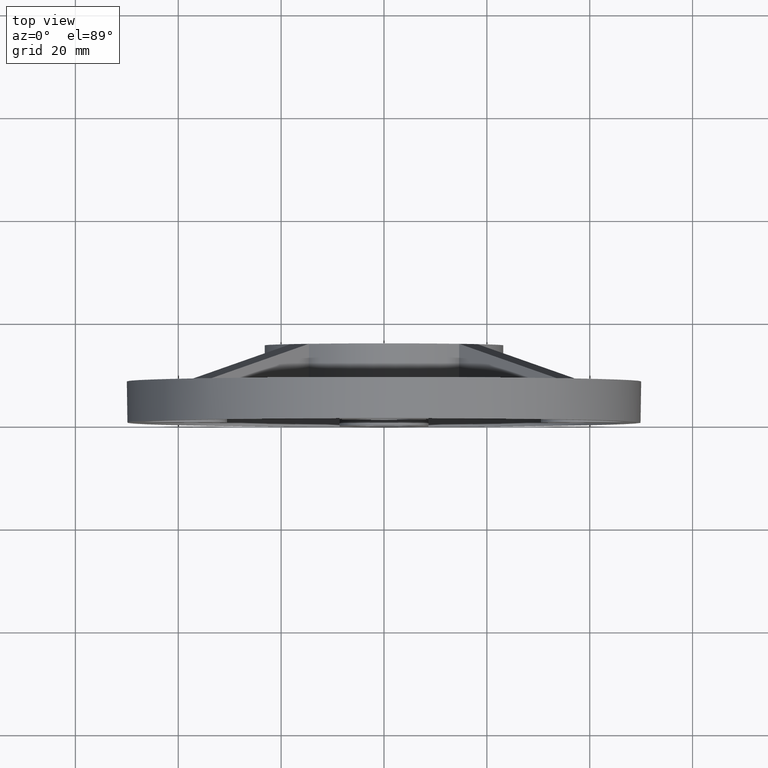
[diagram: clean part render]
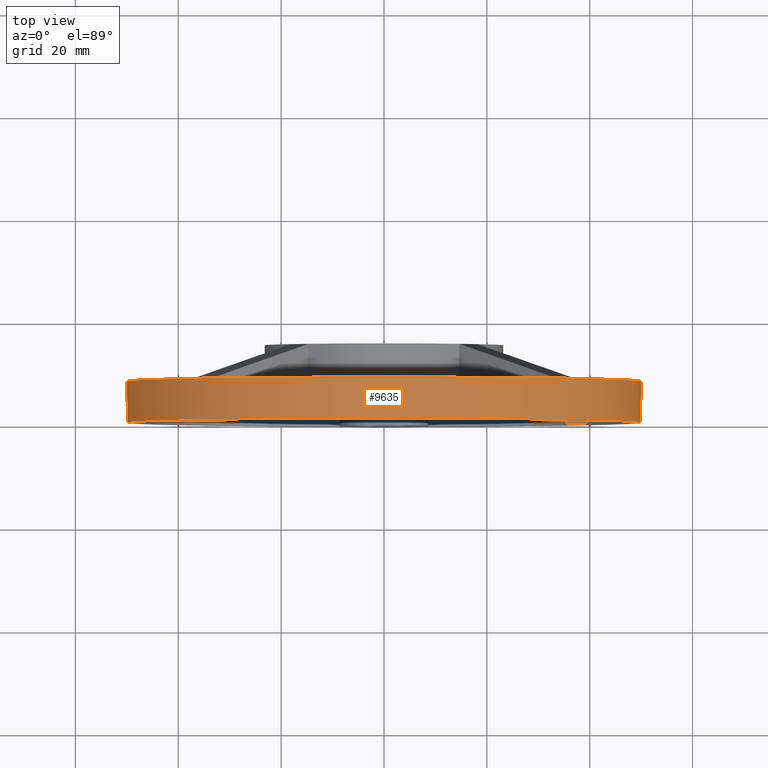
[diagram: same view with one face highlighted and labeled with its STEP entity id]
A machine part, top view. The second image highlights one B-rep face of the part: STEP entity #9635.
In plain terms, the highlighted cylindrical surface (bore or boss wall) has radius 50 mm, axis along (-0, -1, -0).
Its self-contained STEP definition (entity closure, byte-faithful):
#3 = CARTESIAN_POINT ( 'NONE',  ( 37.07888418253015317, 8.000000000000000000, -33.54335027659752910 ) ) ;
#18 = CIRCLE ( 'NONE', #2540, 50.00000000000000000 ) ;
#199 = ORIENTED_EDGE ( 'NONE', *, *, #3386, .F. ) ;
#330 = VERTEX_POINT ( 'NONE', #10463 ) ;
#354 = CARTESIAN_POINT ( 'NONE',  ( -37.07888418252991158, 8.000000000000000000, 33.54335027659778490 ) ) ;
#535 = DIRECTION ( 'NONE',  ( 0.000000000000000000, 0.000000000000000000, 1.000000000000000000 ) ) ;
#536 = DIRECTION ( 'NONE',  ( 0.000000000000000000, 1.000000000000000000, 0.000000000000000000 ) ) ;
#577 = FACE_OUTER_BOUND ( 'NONE', #3275, .T. ) ;
#587 = VERTEX_POINT ( 'NONE', #5414 ) ;
#609 = CARTESIAN_POINT ( 'NONE',  ( 0.000000000000000000, 8.000000000000000000, 0.000000000000000000 ) ) ;
#713 = ORIENTED_EDGE ( 'NONE', *, *, #9941, .T. ) ;
#773 = VERTEX_POINT ( 'NONE', #7668 ) ;
#871 = CARTESIAN_POINT ( 'NONE',  ( -34.78034455632263189, 8.035550269566304138, -35.95983938574750027 ) ) ;
#936 = ORIENTED_EDGE ( 'NONE', *, *, #4731, .F. ) ;
#957 = CARTESIAN_POINT ( 'NONE',  ( 0.000000000000000000, 8.000000000000000000, 0.000000000000000000 ) ) ;
#960 = AXIS2_PLACEMENT_3D ( 'NONE', #957, #9122, #7465 ) ;
#1145 = CARTESIAN_POINT ( 'NONE',  ( 0.000000000000000000, 8.000000000000000000, 0.000000000000000000 ) ) ;
#1147 = CARTESIAN_POINT ( 'NONE',  ( 33.54335027659739410, 8.000000000000000000, 37.07888418253026686 ) ) ;
#1234 = AXIS2_PLACEMENT_3D ( 'NONE', #609, #1498, #6359 ) ;
#1243 = AXIS2_PLACEMENT_3D ( 'NONE', #10326, #9617, #5574 ) ;
#1371 = VERTEX_POINT ( 'NONE', #9775 ) ;
#1441 =( BOUNDED_CURVE ( )  B_SPLINE_CURVE ( 3, ( #9201, #9065, #871, #6618 ),
 .UNSPECIFIED., .F., .T. ) 
 B_SPLINE_CURVE_WITH_KNOTS ( ( 4, 4 ),
 ( 3.091571796784022386, 3.191613510395562958 ),
 .UNSPECIFIED. ) 
 CURVE ( )  GEOMETRIC_REPRESENTATION_ITEM ( )  RATIONAL_B_SPLINE_CURVE ( ( 1.000000000000000000, 0.9991661451812726691, 0.9991661451812726691, 1.000000000000000000 ) ) 
 REPRESENTATION_ITEM ( '' )  );
#1498 = DIRECTION ( 'NONE',  ( 0.000000000000000000, 1.000000000000000000, 0.000000000000000000 ) ) ;
#1501 = CARTESIAN_POINT ( 'NONE',  ( 0.000000000000000000, 8.000000000000000000, 0.000000000000000000 ) ) ;
#1573 = VERTEX_POINT ( 'NONE', #2029 ) ;
#1833 = CARTESIAN_POINT ( 'NONE',  ( 37.07888418253015317, 8.000000000000000000, 33.54335027659752200 ) ) ;
#2029 = CARTESIAN_POINT ( 'NONE',  ( 33.54335027659739410, 8.000000000000000000, 37.07888418253026686 ) ) ;
#2373 =( BOUNDED_CURVE ( )  B_SPLINE_CURVE ( 3, ( #7879, #2953, #8614, #354 ),
 .UNSPECIFIED., .F., .T. ) 
 B_SPLINE_CURVE_WITH_KNOTS ( ( 4, 4 ),
 ( 3.091571796784033044, 3.191613510395562958 ),
 .UNSPECIFIED. ) 
 CURVE ( )  GEOMETRIC_REPRESENTATION_ITEM ( )  RATIONAL_B_SPLINE_CURVE ( ( 1.000000000000000000, 0.9991661451812726691, 0.9991661451812726691, 1.000000000000000000 ) ) 
 REPRESENTATION_ITEM ( '' )  );
#2540 = AXIS2_PLACEMENT_3D ( 'NONE', #1145, #9346, #2763 ) ;
#2628 = EDGE_CURVE ( 'NONE', #330, #5814, #1441, .T. ) ;
#2763 = DIRECTION ( 'NONE',  ( 0.000000000000000000, 0.000000000000000000, 1.000000000000000000 ) ) ;
#2855 = VERTEX_POINT ( 'NONE', #5171 ) ;
#2953 = CARTESIAN_POINT ( 'NONE',  ( -34.78034455632261768, 8.035550269566304138, 35.95983938574752159 ) ) ;
#3140 = EDGE_CURVE ( 'NONE', #2855, #2855, #10309, .T. ) ;
#3275 = EDGE_LOOP ( 'NONE', ( #199, #8148, #9689, #10317, #7421, #9293, #936, #713 ) ) ;
#3386 = EDGE_CURVE ( 'NONE', #587, #1573, #6957, .T. ) ;
#3515 = CARTESIAN_POINT ( 'NONE',  ( 37.07888418253015317, 8.000000000000000000, 33.54335027659752200 ) ) ;
#3789 = CARTESIAN_POINT ( 'NONE',  ( 0.000000000000000000, 0.000000000000000000, 0.000000000000000000 ) ) ;
#3861 = DIRECTION ( 'NONE',  ( 0.000000000000000000, 1.000000000000000000, 0.000000000000000000 ) ) ;
#4028 = VERTEX_POINT ( 'NONE', #1833 ) ;
#4053 = EDGE_CURVE ( 'NONE', #330, #773, #18, .T. ) ;
#4160 = CARTESIAN_POINT ( 'NONE',  ( 33.54335027659750779, 7.999999999999996447, -37.07888418253015317 ) ) ;
#4613 =( BOUNDED_CURVE ( )  B_SPLINE_CURVE ( 3, ( #4160, #8222, #9845, #3 ),
 .UNSPECIFIED., .F., .F. ) 
 B_SPLINE_CURVE_WITH_KNOTS ( ( 4, 4 ),
 ( 3.091571796784026382, 3.191613510395562958 ),
 .UNSPECIFIED. ) 
 CURVE ( )  GEOMETRIC_REPRESENTATION_ITEM ( )  RATIONAL_B_SPLINE_CURVE ( ( 1.000000000000000000, 0.9991661451812726691, 0.9991661451812726691, 1.000000000000000000 ) ) 
 REPRESENTATION_ITEM ( '' )  );
#4731 = EDGE_CURVE ( 'NONE', #4028, #1371, #7065, .T. ) ;
#4969 = FACE_OUTER_BOUND ( 'NONE', #8309, .T. ) ;
#5018 = CIRCLE ( 'NONE', #7239, 50.00000000000000000 ) ;
#5101 =( BOUNDED_CURVE ( )  B_SPLINE_CURVE ( 3, ( #3515, #6088, #9275, #1147 ),
 .UNSPECIFIED., .F., .T. ) 
 B_SPLINE_CURVE_WITH_KNOTS ( ( 4, 4 ),
 ( 3.091571796784022830, 3.191613510395562958 ),
 .UNSPECIFIED. ) 
 CURVE ( )  GEOMETRIC_REPRESENTATION_ITEM ( )  RATIONAL_B_SPLINE_CURVE ( ( 1.000000000000000000, 0.9991661451812726691, 0.9991661451812726691, 1.000000000000000000 ) ) 
 REPRESENTATION_ITEM ( '' )  );
#5171 = CARTESIAN_POINT ( 'NONE',  ( 0.000000000000000000, 0.000000000000000000, 50.00000000000000000 ) ) ;
#5214 = CARTESIAN_POINT ( 'NONE',  ( 33.54335027659750779, 7.999999999999996447, -37.07888418253015317 ) ) ;
#5414 = CARTESIAN_POINT ( 'NONE',  ( -33.54335027659750779, 8.000000000000000000, 37.07888418253013896 ) ) ;
#5574 = DIRECTION ( 'NONE',  ( 0.000000000000000000, 0.000000000000000000, -1.000000000000000000 ) ) ;
#5732 = EDGE_CURVE ( 'NONE', #8781, #5814, #5018, .T. ) ;
#5814 = VERTEX_POINT ( 'NONE', #7320 ) ;
#6088 = CARTESIAN_POINT ( 'NONE',  ( 35.95983938574739369, 8.035550269566304138, 34.78034455632275268 ) ) ;
#6359 = DIRECTION ( 'NONE',  ( 0.000000000000000000, 0.000000000000000000, 1.000000000000000000 ) ) ;
#6446 = EDGE_CURVE ( 'NONE', #587, #773, #2373, .T. ) ;
#6618 = CARTESIAN_POINT ( 'NONE',  ( -33.54335027659739410, 8.000000000000000000, -37.07888418253026686 ) ) ;
#6957 = CIRCLE ( 'NONE', #960, 50.00000000000000000 ) ;
#7065 = CIRCLE ( 'NONE', #1234, 50.00000000000000000 ) ;
#7089 = ORIENTED_EDGE ( 'NONE', *, *, #3140, .T. ) ;
#7239 = AXIS2_PLACEMENT_3D ( 'NONE', #1501, #3861, #535 ) ;
#7320 = CARTESIAN_POINT ( 'NONE',  ( -33.54335027659739410, 8.000000000000000000, -37.07888418253026686 ) ) ;
#7421 = ORIENTED_EDGE ( 'NONE', *, *, #5732, .F. ) ;
#7465 = DIRECTION ( 'NONE',  ( 0.000000000000000000, 0.000000000000000000, 1.000000000000000000 ) ) ;
#7668 = CARTESIAN_POINT ( 'NONE',  ( -37.07888418252991158, 8.000000000000000000, 33.54335027659778490 ) ) ;
#7879 = CARTESIAN_POINT ( 'NONE',  ( -33.54335027659750779, 8.000000000000000000, 37.07888418253013896 ) ) ;
#8043 = DIRECTION ( 'NONE',  ( 0.000000000000000000, 0.000000000000000000, 1.000000000000000000 ) ) ;
#8148 = ORIENTED_EDGE ( 'NONE', *, *, #6446, .T. ) ;
#8151 = CYLINDRICAL_SURFACE ( 'NONE', #1243, 50.00000000000000000 ) ;
#8222 = CARTESIAN_POINT ( 'NONE',  ( 34.78034455632271005, 8.035550269566300585, -35.95983938574744343 ) ) ;
#8309 = EDGE_LOOP ( 'NONE', ( #7089 ) ) ;
#8614 = CARTESIAN_POINT ( 'NONE',  ( -35.95983938574726579, 8.035550269566304138, 34.78034455632288768 ) ) ;
#8714 = EDGE_CURVE ( 'NONE', #8781, #1371, #4613, .T. ) ;
#8781 = VERTEX_POINT ( 'NONE', #5214 ) ;
#9065 = CARTESIAN_POINT ( 'NONE',  ( -35.95983938574741501, 8.035550269566304138, -34.78034455632273847 ) ) ;
#9122 = DIRECTION ( 'NONE',  ( 0.000000000000000000, 1.000000000000000000, 0.000000000000000000 ) ) ;
#9201 = CARTESIAN_POINT ( 'NONE',  ( -37.07888418253016738, 7.999999999999996447, -33.54335027659750779 ) ) ;
#9275 = CARTESIAN_POINT ( 'NONE',  ( 34.78034455632262478, 8.035550269566304138, 35.95983938574750738 ) ) ;
#9293 = ORIENTED_EDGE ( 'NONE', *, *, #8714, .T. ) ;
#9346 = DIRECTION ( 'NONE',  ( 0.000000000000000000, 1.000000000000000000, 0.000000000000000000 ) ) ;
#9571 = AXIS2_PLACEMENT_3D ( 'NONE', #3789, #536, #8043 ) ;
#9617 = DIRECTION ( 'NONE',  ( -0.000000000000000000, -1.000000000000000000, -0.000000000000000000 ) ) ;
#9635 = ADVANCED_FACE ( 'NONE', ( #577, #4969 ), #8151, .T. ) ;
#9689 = ORIENTED_EDGE ( 'NONE', *, *, #4053, .F. ) ;
#9775 = CARTESIAN_POINT ( 'NONE',  ( 37.07888418253015317, 8.000000000000000000, -33.54335027659752910 ) ) ;
#9845 = CARTESIAN_POINT ( 'NONE',  ( 35.95983938574743632, 8.035550269566298809, -34.78034455632272426 ) ) ;
#9941 = EDGE_CURVE ( 'NONE', #4028, #1573, #5101, .T. ) ;
#10309 = CIRCLE ( 'NONE', #9571, 50.00000000000000000 ) ;
#10317 = ORIENTED_EDGE ( 'NONE', *, *, #2628, .T. ) ;
#10326 = CARTESIAN_POINT ( 'NONE',  ( 0.000000000000000000, 8.000000000000000000, 0.000000000000000000 ) ) ;
#10463 = CARTESIAN_POINT ( 'NONE',  ( -37.07888418253016738, 7.999999999999996447, -33.54335027659750779 ) ) ;